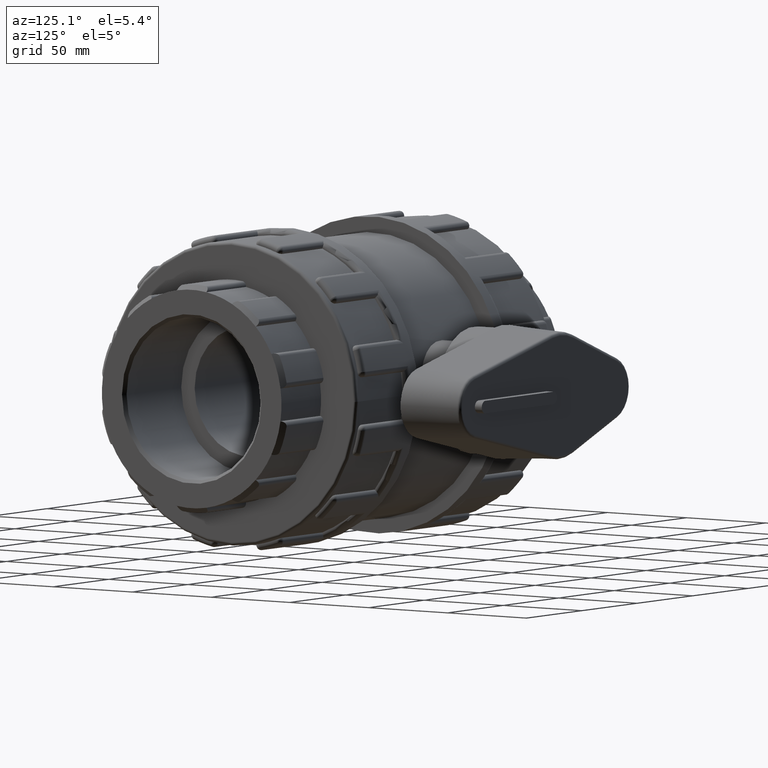
[diagram: clean part render]
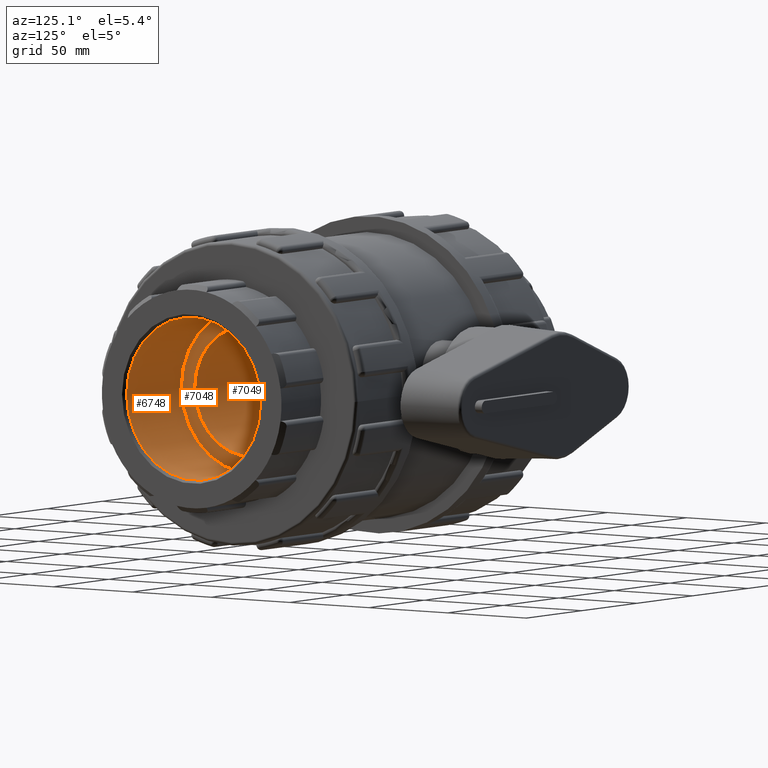
[diagram: same view with one multi-face feature highlighted, each face labeled with its STEP entity id]
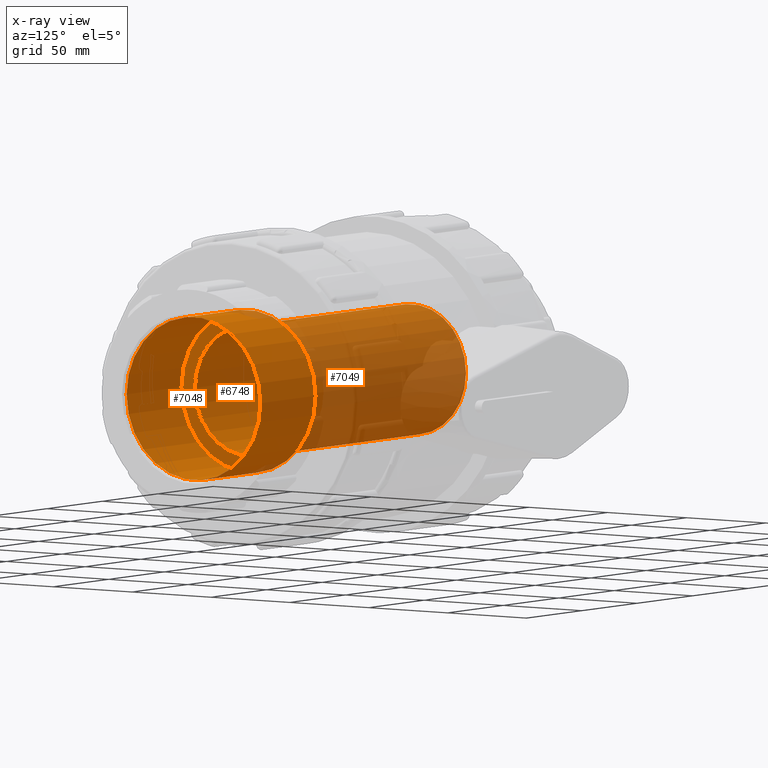
[diagram: x-ray of the same camera — body ghosted, the whole feature saturated]
A machine part, auxiliary view. The highlighted faces form ONE feature: a stepped (counterbored) hole: 2 coaxial cylindrical walls of radii 33.9704 -> 42.463 mm joined by 1 annular planar shoulder face(s). The faces share edges in the B-rep.
The next image is the same camera in x-ray: the body ghosted and the whole hole feature saturated, so the bore chain is visible through the body.
Their STEP definitions:
[1] entity #6748 (Cylinder):
#210=FACE_BOUND('',#996,.T.);
#551=FACE_OUTER_BOUND('',#995,.T.);
#995=EDGE_LOOP('',(#4880));
#996=EDGE_LOOP('',(#4881));
#2277=CIRCLE('',#7354,42.463);
#2278=CIRCLE('',#7357,42.463);
#2825=VERTEX_POINT('',#11466);
#2826=VERTEX_POINT('',#11470);
#3589=EDGE_CURVE('',#2825,#2825,#2277,.T.);
#3590=EDGE_CURVE('',#2826,#2826,#2278,.T.);
#4880=ORIENTED_EDGE('',*,*,#3590,.F.);
#4881=ORIENTED_EDGE('',*,*,#3589,.F.);
#6514=CYLINDRICAL_SURFACE('',#7356,42.463);
#6748=ADVANCED_FACE('',(#551,#210),#6514,.F.);
#7354=AXIS2_PLACEMENT_3D('',#11467,#8718,#8719);
#7356=AXIS2_PLACEMENT_3D('',#11469,#8722,#8723);
#7357=AXIS2_PLACEMENT_3D('',#11471,#8724,#8725);
#8718=DIRECTION('center_axis',(-1.,0.,0.));
#8719=DIRECTION('ref_axis',(0.,-1.,0.));
#8722=DIRECTION('center_axis',(1.,0.,0.));
#8723=DIRECTION('ref_axis',(0.,1.,0.));
#8724=DIRECTION('center_axis',(1.,0.,0.));
#8725=DIRECTION('ref_axis',(0.,0.,-1.));
#11466=CARTESIAN_POINT('',(123.30148,42.463,-5.20021770321941E-15));
#11467=CARTESIAN_POINT('Origin',(123.30148,0.,0.));
#11469=CARTESIAN_POINT('Origin',(99.5,0.,0.));
#11470=CARTESIAN_POINT('',(74.,42.463,0.));
#11471=CARTESIAN_POINT('Origin',(74.,0.,0.));
[2] entity #7049 (Cylinder):
#224=FACE_BOUND('',#1311,.T.);
#852=FACE_OUTER_BOUND('',#1310,.T.);
#1310=EDGE_LOOP('',(#6421));
#1311=EDGE_LOOP('',(#6422));
#2623=CIRCLE('',#8002,33.9704);
#2624=CIRCLE('',#8004,33.9704);
#3267=VERTEX_POINT('',#14044);
#3268=VERTEX_POINT('',#14047);
#4319=EDGE_CURVE('',#3267,#3267,#2623,.T.);
#4320=EDGE_CURVE('',#3268,#3268,#2624,.T.);
#6421=ORIENTED_EDGE('',*,*,#4319,.T.);
#6422=ORIENTED_EDGE('',*,*,#4320,.F.);
#6616=CYLINDRICAL_SURFACE('',#8003,33.9704);
#7049=ADVANCED_FACE('',(#852,#224),#6616,.F.);
#8002=AXIS2_PLACEMENT_3D('',#14045,#10302,#10303);
#8003=AXIS2_PLACEMENT_3D('',#14046,#10304,#10305);
#8004=AXIS2_PLACEMENT_3D('',#14048,#10306,#10307);
#10302=DIRECTION('center_axis',(1.,0.,0.));
#10303=DIRECTION('ref_axis',(0.,0.,-1.));
#10304=DIRECTION('center_axis',(1.,0.,0.));
#10305=DIRECTION('ref_axis',(0.,1.,0.));
#10306=DIRECTION('center_axis',(1.,0.,0.));
#10307=DIRECTION('ref_axis',(0.,0.,-1.));
#14044=CARTESIAN_POINT('',(74.,33.9704,0.));
#14045=CARTESIAN_POINT('Origin',(74.,0.,0.));
#14046=CARTESIAN_POINT('Origin',(0.,0.,0.));
#14047=CARTESIAN_POINT('',(-74.,33.9704,0.));
#14048=CARTESIAN_POINT('Origin',(-74.,0.,0.));
[3] entity #7048 (Plane):
#223=FACE_BOUND('',#1309,.T.);
#338=PLANE('',#8001);
#851=FACE_OUTER_BOUND('',#1308,.T.);
#1308=EDGE_LOOP('',(#6419));
#1309=EDGE_LOOP('',(#6420));
#2278=CIRCLE('',#7357,42.463);
#2623=CIRCLE('',#8002,33.9704);
#2826=VERTEX_POINT('',#11470);
#3267=VERTEX_POINT('',#14044);
#3590=EDGE_CURVE('',#2826,#2826,#2278,.T.);
#4319=EDGE_CURVE('',#3267,#3267,#2623,.T.);
#6419=ORIENTED_EDGE('',*,*,#3590,.T.);
#6420=ORIENTED_EDGE('',*,*,#4319,.F.);
#7048=ADVANCED_FACE('',(#851,#223),#338,.T.);
#7357=AXIS2_PLACEMENT_3D('',#11471,#8724,#8725);
#8001=AXIS2_PLACEMENT_3D('',#14043,#10300,#10301);
#8002=AXIS2_PLACEMENT_3D('',#14045,#10302,#10303);
#8724=DIRECTION('center_axis',(1.,0.,0.));
#8725=DIRECTION('ref_axis',(0.,0.,-1.));
#10300=DIRECTION('center_axis',(1.,0.,0.));
#10301=DIRECTION('ref_axis',(0.,0.,-1.));
#10302=DIRECTION('center_axis',(1.,0.,0.));
#10303=DIRECTION('ref_axis',(0.,0.,-1.));
#11470=CARTESIAN_POINT('',(74.,42.463,0.));
#11471=CARTESIAN_POINT('Origin',(74.,0.,0.));
#14043=CARTESIAN_POINT('Origin',(74.,33.9704,0.));
#14044=CARTESIAN_POINT('',(74.,33.9704,0.));
#14045=CARTESIAN_POINT('Origin',(74.,0.,0.));